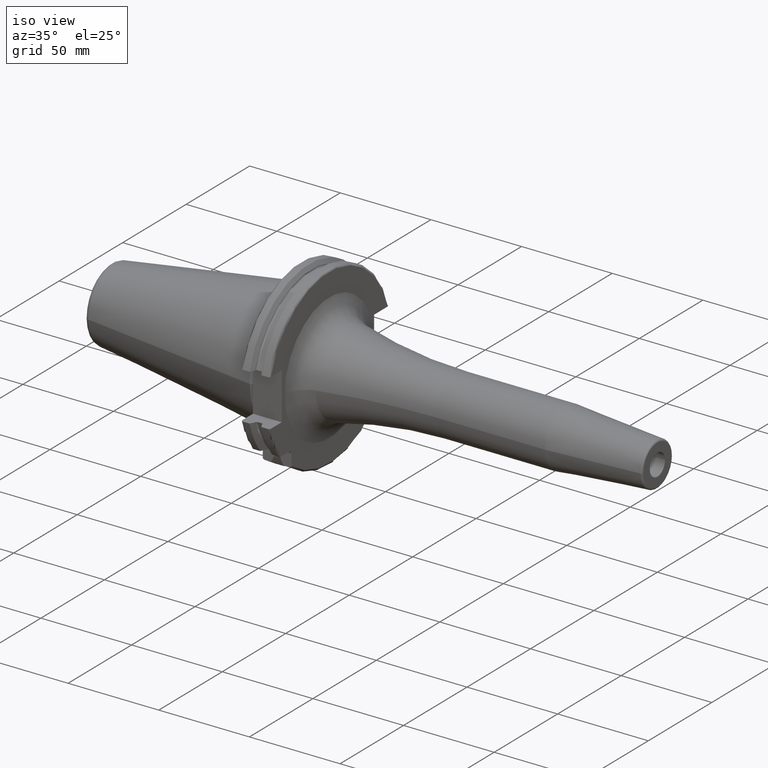
[diagram: clean part render]
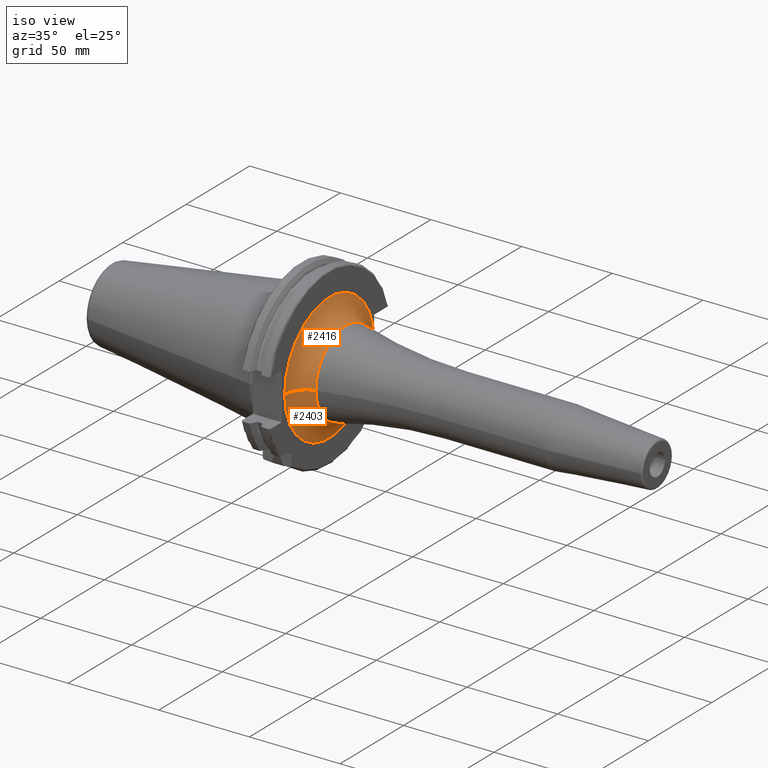
[diagram: same view with one multi-face feature highlighted, each face labeled with its STEP entity id]
A machine part, iso view. The highlighted faces form ONE feature: a constant-radius fillet chain: 2 tangent blend faces with common blend radius 12 mm. The faces share edges in the B-rep.
Their STEP definitions:
[1] entity #2416 (Torus):
#163=CARTESIAN_POINT('',(1.905E1,0.E0,0.E0));
#164=DIRECTION('',(1.E0,0.E0,0.E0));
#165=DIRECTION('',(0.E0,1.E0,0.E0));
#166=AXIS2_PLACEMENT_3D('',#163,#164,#165);
#896=CARTESIAN_POINT('',(3.105E1,-3.517539125994E1,7.855494033038E-12));
#897=DIRECTION('',(0.E0,-2.233230961268E-13,-1.E0));
#898=DIRECTION('',(-1.E0,2.782959048394E-14,0.E0));
#899=AXIS2_PLACEMENT_3D('',#896,#897,#898);
#901=CARTESIAN_POINT('',(3.105E1,3.517539125994E1,-7.859546347078E-12));
#902=DIRECTION('',(0.E0,2.234375878762E-13,1.E0));
#903=DIRECTION('',(-1.E0,-2.782959048394E-14,0.E0));
#904=AXIS2_PLACEMENT_3D('',#901,#902,#903);
#906=CARTESIAN_POINT('',(2.812563025210E1,0.E0,0.E0));
#907=DIRECTION('',(1.E0,0.E0,0.E0));
#908=DIRECTION('',(0.E0,1.E0,0.E0));
#909=AXIS2_PLACEMENT_3D('',#906,#907,#908);
#1472=CARTESIAN_POINT('',(1.905E1,-3.517539125994E1,0.E0));
#1473=CARTESIAN_POINT('',(1.905E1,3.517539125994E1,0.E0));
#1474=VERTEX_POINT('',#1472);
#1475=VERTEX_POINT('',#1473);
#1476=CARTESIAN_POINT('',(2.812563025210E1,-2.353717569322E1,0.E0));
#1477=CARTESIAN_POINT('',(2.812563025210E1,2.353717569322E1,0.E0));
#1478=VERTEX_POINT('',#1476);
#1479=VERTEX_POINT('',#1477);
#2404=CARTESIAN_POINT('',(3.105E1,0.E0,0.E0));
#2405=DIRECTION('',(1.E0,0.E0,0.E0));
#2406=DIRECTION('',(0.E0,9.999655044275E-1,-8.306019201937E-3));
#2407=AXIS2_PLACEMENT_3D('',#2404,#2405,#2406);
#2408=TOROIDAL_SURFACE('',#2407,3.517539125994E1,1.2E1);
#2409=ORIENTED_EDGE('',*,*,#1684,.F.);
#2410=ORIENTED_EDGE('',*,*,#2399,.T.);
#2412=ORIENTED_EDGE('',*,*,#2411,.T.);
#2413=ORIENTED_EDGE('',*,*,#2395,.F.);
#2414=EDGE_LOOP('',(#2409,#2410,#2412,#2413));
#2415=FACE_OUTER_BOUND('',#2414,.F.);
#2416=ADVANCED_FACE('',(#2415),#2408,.F.);
#167=CIRCLE('',#166,3.517539125994E1);
#900=CIRCLE('',#899,1.2E1);
#905=CIRCLE('',#904,1.2E1);
#910=CIRCLE('',#909,2.353717569322E1);
#1684=EDGE_CURVE('',#1475,#1474,#167,.T.);
#2395=EDGE_CURVE('',#1474,#1478,#900,.T.);
#2399=EDGE_CURVE('',#1475,#1479,#905,.T.);
#2411=EDGE_CURVE('',#1479,#1478,#910,.T.);
[2] entity #2403 (Torus):
#158=CARTESIAN_POINT('',(1.905E1,0.E0,0.E0));
#159=DIRECTION('',(1.E0,0.E0,0.E0));
#160=DIRECTION('',(0.E0,-1.E0,0.E0));
#161=AXIS2_PLACEMENT_3D('',#158,#159,#160);
#896=CARTESIAN_POINT('',(3.105E1,-3.517539125994E1,7.855494033038E-12));
#897=DIRECTION('',(0.E0,-2.233230961268E-13,-1.E0));
#898=DIRECTION('',(-1.E0,2.782959048394E-14,0.E0));
#899=AXIS2_PLACEMENT_3D('',#896,#897,#898);
#901=CARTESIAN_POINT('',(3.105E1,3.517539125994E1,-7.859546347078E-12));
#902=DIRECTION('',(0.E0,2.234375878762E-13,1.E0));
#903=DIRECTION('',(-1.E0,-2.782959048394E-14,0.E0));
#904=AXIS2_PLACEMENT_3D('',#901,#902,#903);
#911=CARTESIAN_POINT('',(2.812563025210E1,0.E0,0.E0));
#912=DIRECTION('',(1.E0,0.E0,0.E0));
#913=DIRECTION('',(0.E0,-1.E0,0.E0));
#914=AXIS2_PLACEMENT_3D('',#911,#912,#913);
#1472=CARTESIAN_POINT('',(1.905E1,-3.517539125994E1,0.E0));
#1473=CARTESIAN_POINT('',(1.905E1,3.517539125994E1,0.E0));
#1474=VERTEX_POINT('',#1472);
#1475=VERTEX_POINT('',#1473);
#1476=CARTESIAN_POINT('',(2.812563025210E1,-2.353717569322E1,0.E0));
#1477=CARTESIAN_POINT('',(2.812563025210E1,2.353717569322E1,0.E0));
#1478=VERTEX_POINT('',#1476);
#1479=VERTEX_POINT('',#1477);
#2389=CARTESIAN_POINT('',(3.105E1,0.E0,0.E0));
#2390=DIRECTION('',(1.E0,0.E0,0.E0));
#2391=DIRECTION('',(0.E0,-9.999655044275E-1,8.306019201936E-3));
#2392=AXIS2_PLACEMENT_3D('',#2389,#2390,#2391);
#2393=TOROIDAL_SURFACE('',#2392,3.517539125994E1,1.2E1);
#2394=ORIENTED_EDGE('',*,*,#1682,.F.);
#2396=ORIENTED_EDGE('',*,*,#2395,.T.);
#2398=ORIENTED_EDGE('',*,*,#2397,.T.);
#2400=ORIENTED_EDGE('',*,*,#2399,.F.);
#2401=EDGE_LOOP('',(#2394,#2396,#2398,#2400));
#2402=FACE_OUTER_BOUND('',#2401,.F.);
#2403=ADVANCED_FACE('',(#2402),#2393,.F.);
#162=CIRCLE('',#161,3.517539125994E1);
#900=CIRCLE('',#899,1.2E1);
#905=CIRCLE('',#904,1.2E1);
#915=CIRCLE('',#914,2.353717569322E1);
#1682=EDGE_CURVE('',#1474,#1475,#162,.T.);
#2395=EDGE_CURVE('',#1474,#1478,#900,.T.);
#2397=EDGE_CURVE('',#1478,#1479,#915,.T.);
#2399=EDGE_CURVE('',#1475,#1479,#905,.T.);